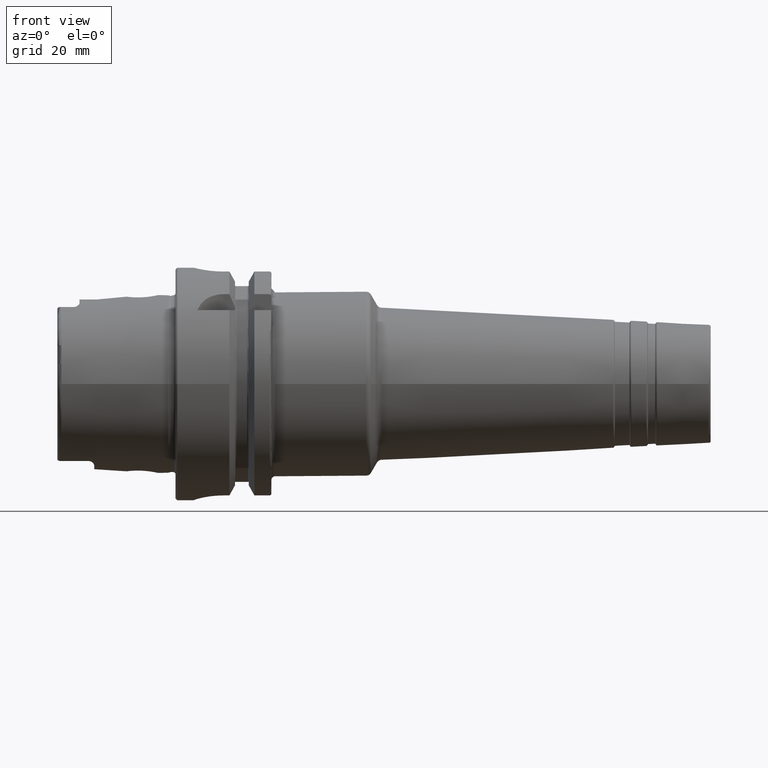
[diagram: clean part render]
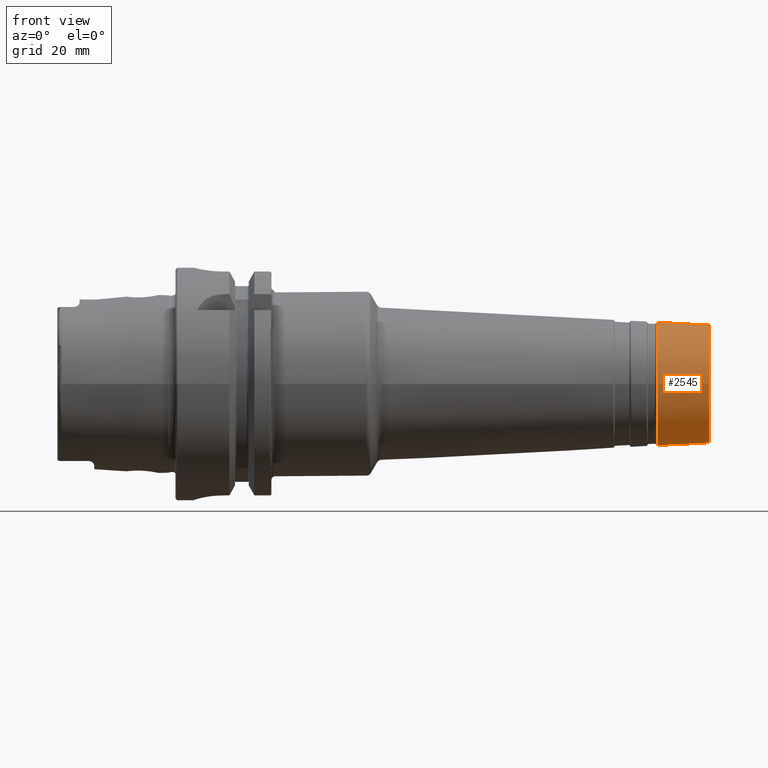
[diagram: same view with one face highlighted and labeled with its STEP entity id]
A machine part, front view. The second image highlights one B-rep face of the part: STEP entity #2545.
In plain terms, the highlighted conical surface has half-angle 3 deg.
Its self-contained STEP definition (entity closure, byte-faithful):
#236=FACE_OUTER_BOUND('',#371,.T.);
#371=EDGE_LOOP('',(#1809,#1810,#1811,#1812,#1813,#1814,#1815,#1816));
#510=LINE('',#4062,#627);
#627=VECTOR('',#3244,16.3848185972057);
#799=CIRCLE('',#2767,16.7575507230413);
#800=CIRCLE('',#2768,16.7575507230413);
#802=CIRCLE('',#2770,16.7575507230413);
#803=CIRCLE('',#2772,16.0248324840198);
#804=CIRCLE('',#2773,16.0248324840198);
#805=CIRCLE('',#2774,16.0248324840198);
#1015=VERTEX_POINT('',#4049);
#1016=VERTEX_POINT('',#4050);
#1017=VERTEX_POINT('',#4052);
#1018=VERTEX_POINT('',#4057);
#1019=VERTEX_POINT('',#4058);
#1020=VERTEX_POINT('',#4060);
#1324=EDGE_CURVE('',#1015,#1016,#799,.T.);
#1325=EDGE_CURVE('',#1016,#1017,#800,.T.);
#1327=EDGE_CURVE('',#1017,#1015,#802,.T.);
#1328=EDGE_CURVE('',#1018,#1019,#803,.T.);
#1329=EDGE_CURVE('',#1020,#1018,#804,.T.);
#1330=EDGE_CURVE('',#1020,#1016,#510,.T.);
#1331=EDGE_CURVE('',#1019,#1020,#805,.T.);
#1809=ORIENTED_EDGE('',*,*,#1328,.F.);
#1810=ORIENTED_EDGE('',*,*,#1329,.F.);
#1811=ORIENTED_EDGE('',*,*,#1330,.T.);
#1812=ORIENTED_EDGE('',*,*,#1324,.F.);
#1813=ORIENTED_EDGE('',*,*,#1327,.F.);
#1814=ORIENTED_EDGE('',*,*,#1325,.F.);
#1815=ORIENTED_EDGE('',*,*,#1330,.F.);
#1816=ORIENTED_EDGE('',*,*,#1331,.F.);
#2511=CONICAL_SURFACE('',#2771,16.3848185972057,0.0523598775598299);
#2545=ADVANCED_FACE('',(#236),#2511,.T.);
#2767=AXIS2_PLACEMENT_3D('',#4051,#3230,#3231);
#2768=AXIS2_PLACEMENT_3D('',#4053,#3232,#3233);
#2770=AXIS2_PLACEMENT_3D('',#4055,#3236,#3237);
#2771=AXIS2_PLACEMENT_3D('',#4056,#3238,#3239);
#2772=AXIS2_PLACEMENT_3D('',#4059,#3240,#3241);
#2773=AXIS2_PLACEMENT_3D('',#4061,#3242,#3243);
#2774=AXIS2_PLACEMENT_3D('',#4063,#3245,#3246);
#3230=DIRECTION('center_axis',(-1.,0.,0.));
#3231=DIRECTION('ref_axis',(0.,-1.,3.06161699786838E-17));
#3232=DIRECTION('center_axis',(-1.,0.,0.));
#3233=DIRECTION('ref_axis',(0.,-1.,3.06161699786838E-17));
#3236=DIRECTION('center_axis',(-1.,0.,0.));
#3237=DIRECTION('ref_axis',(0.,-1.,3.06161699786838E-17));
#3238=DIRECTION('center_axis',(-1.,0.,0.));
#3239=DIRECTION('ref_axis',(0.,1.,0.));
#3240=DIRECTION('center_axis',(1.,0.,0.));
#3241=DIRECTION('ref_axis',(0.,-1.,3.06161699786838E-17));
#3242=DIRECTION('center_axis',(1.,0.,0.));
#3243=DIRECTION('ref_axis',(0.,-1.,3.06161699786838E-17));
#3244=DIRECTION('',(-0.998629534754574,-0.0523359562429439,-6.40930612932372E-18));
#3245=DIRECTION('center_axis',(1.,0.,0.));
#3246=DIRECTION('ref_axis',(0.,-1.,3.06161699786838E-17));
#4049=CARTESIAN_POINT('',(130.545071105762,16.7575507230413,-5.13052021363049E-15));
#4050=CARTESIAN_POINT('',(130.545071105762,-16.7575507230413,-2.05220808545219E-15));
#4051=CARTESIAN_POINT('Origin',(130.545071105762,0.,-2.56526010681524E-15));
#4052=CARTESIAN_POINT('',(130.545071105762,-2.05220808545219E-15,16.7575507230413));
#4053=CARTESIAN_POINT('Origin',(130.545071105762,0.,-2.56526010681524E-15));
#4055=CARTESIAN_POINT('Origin',(130.545071105762,0.,-2.56526010681524E-15));
#4056=CARTESIAN_POINT('Origin',(137.657223746739,0.,0.));
#4057=CARTESIAN_POINT('',(144.526167978121,16.0248324840198,-9.81237990421372E-16));
#4058=CARTESIAN_POINT('',(144.526167978121,-1.96247598084274E-15,16.0248324840198));
#4059=CARTESIAN_POINT('Origin',(144.526167978121,0.,-2.45309497605343E-15));
#4060=CARTESIAN_POINT('',(144.526167978121,-16.0248324840198,-1.96247598084274E-15));
#4061=CARTESIAN_POINT('Origin',(144.526167978121,0.,-2.45309497605343E-15));
#4062=CARTESIAN_POINT('',(137.657223746739,-16.3848185972057,-2.0065615649678E-15));
#4063=CARTESIAN_POINT('Origin',(144.526167978121,0.,-2.45309497605343E-15));